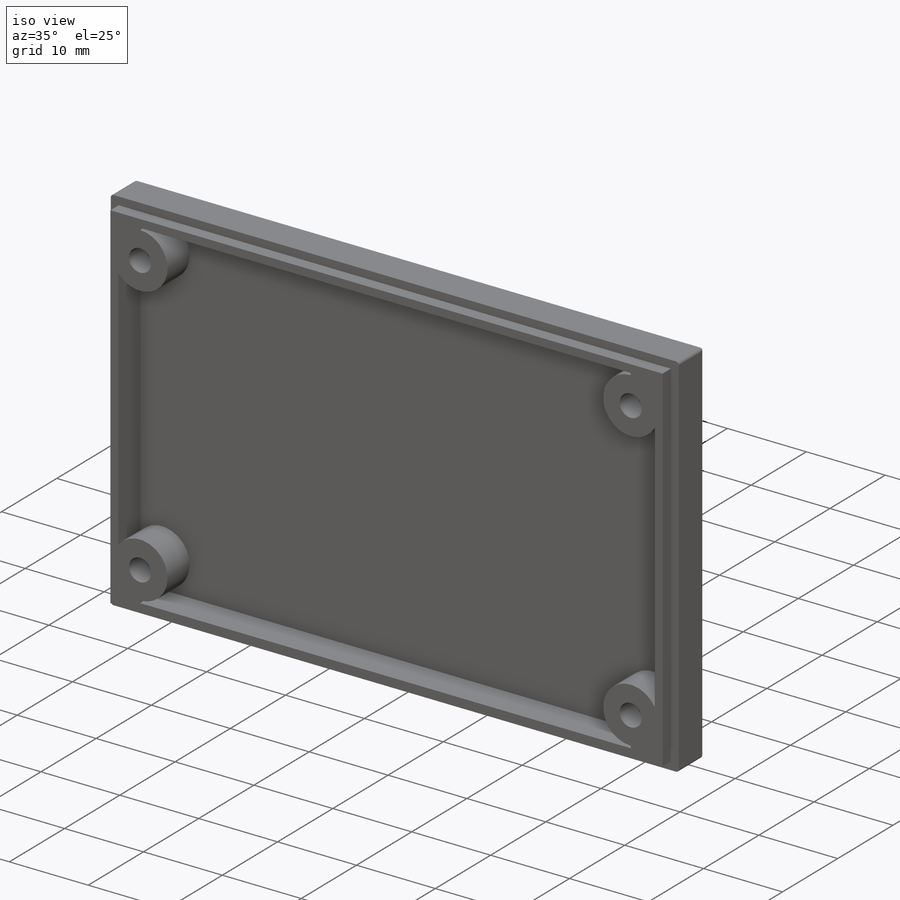
[diagram: iso view]
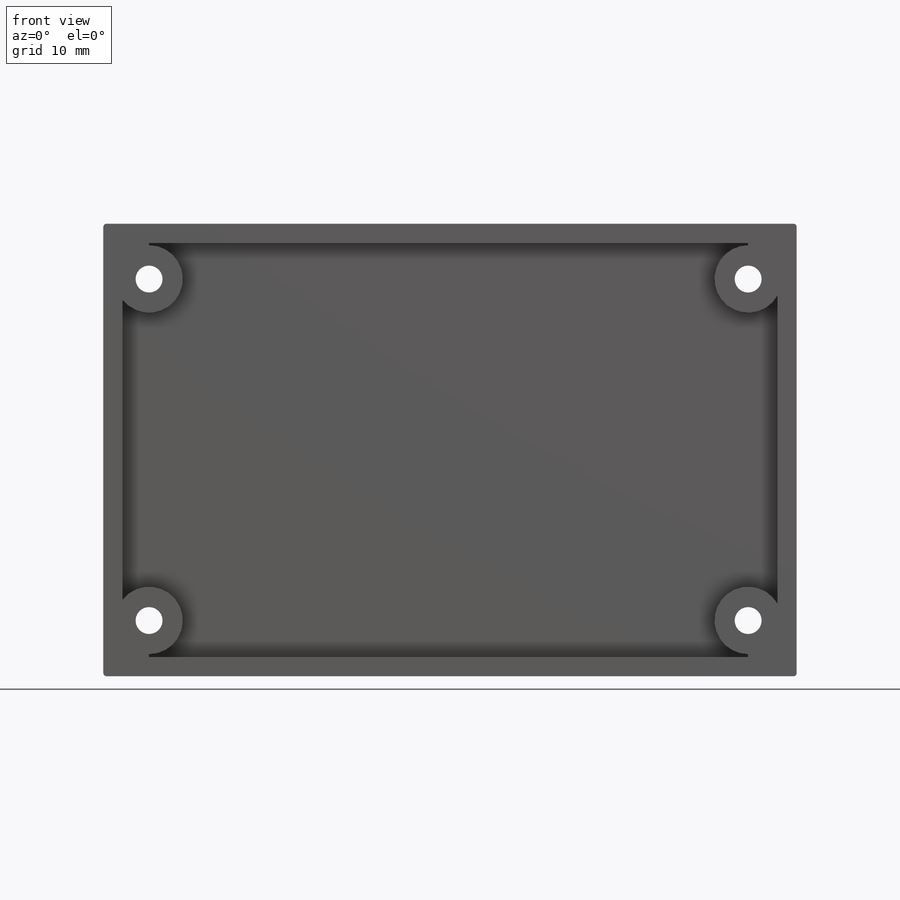
[diagram: front view]
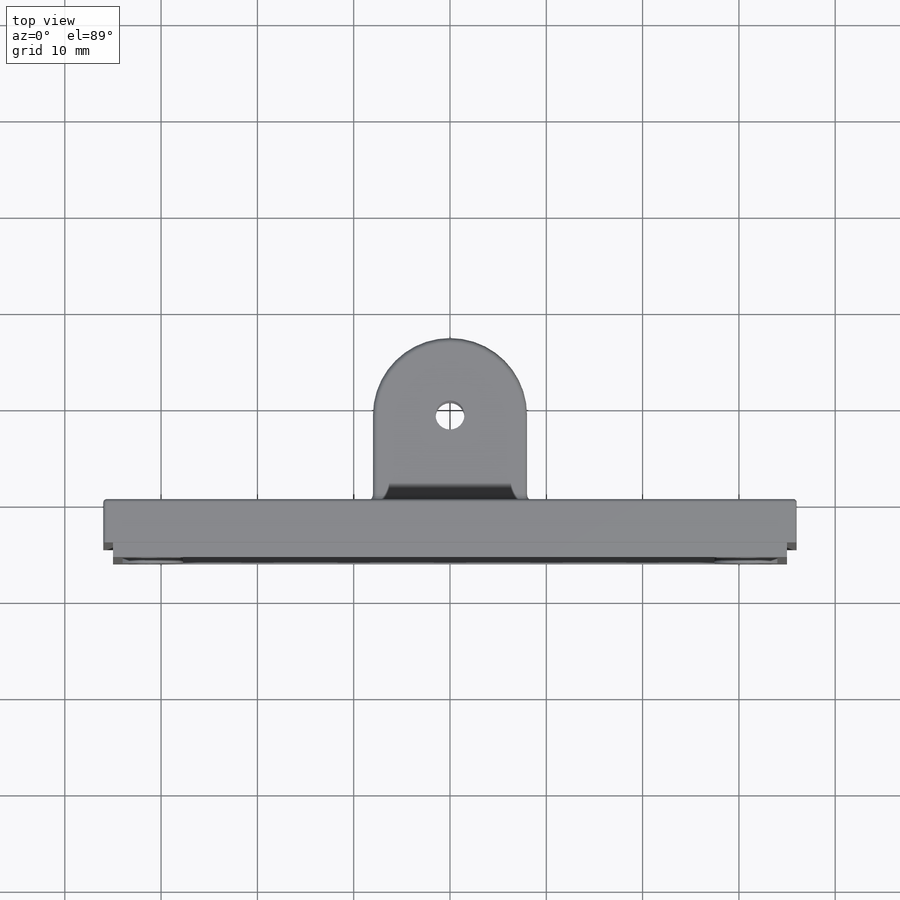
[diagram: top view]
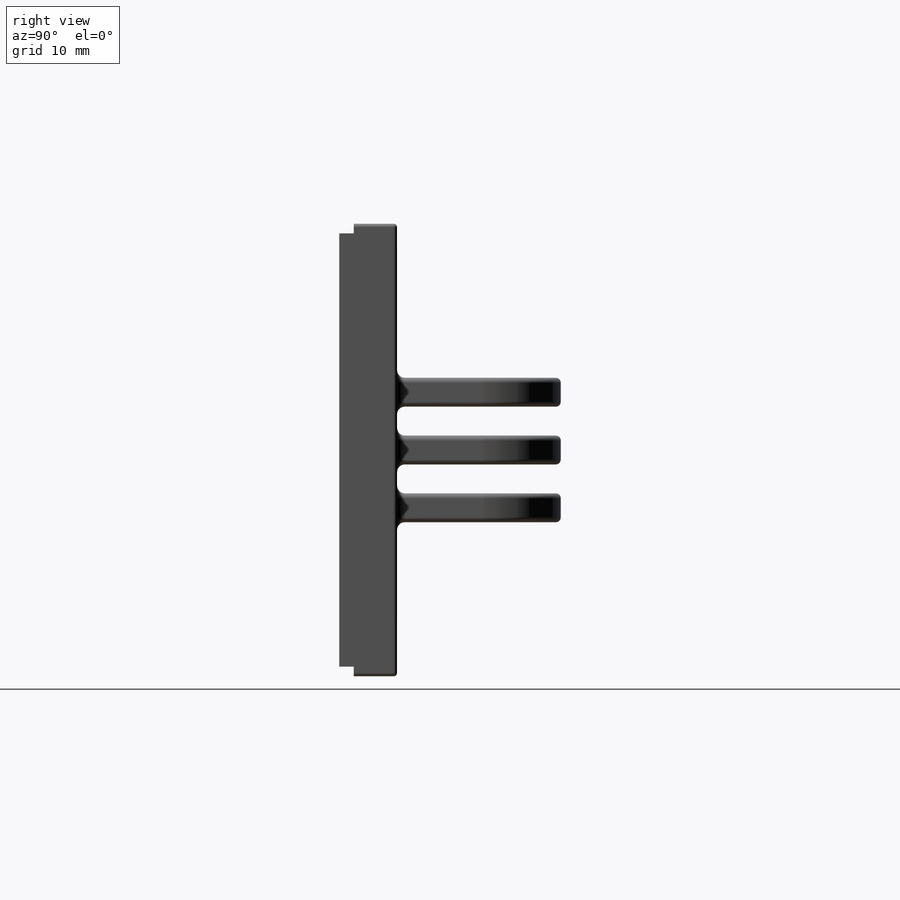
[diagram: right view]
SOLIDWORKS PART (.sldprt)
format: sldprt  version: not decoded by parser v0  size: 509,440 bytes
history: native  units: mm
features: sketch x8, fillet x5, extrude x4, cut_extrude x4, material x1, shell x1 (+12 scaffold rows collapsed)
feature tree (35):
  scaffold x12  (default folders/planes/origin — collapsed)
  material  "Material <not specified>"
  sketch  "Sketch1"  dims[D1=47.0mm D2=72.0mm]
  extrude  "Boss-Extrude1"  Depth=6mm
  shell  "Shell1"  Thickness=2mm
  sketch  "Sketch3"  dims[D1=1.0mm D2=1.0mm]
  cut_extrude  "Cut-Extrude1"  Depth=1.5mm
  sketch  "Sketch2"  dims[D1=7.0mm D2=2.75mm D3=3.75mm D4=2.0 D5=2.0]
  extrude  "Boss-Extrude2"  Depth=4mm
  sketch  "Sketch4"  dims[D1=0.0mm D2=0.0mm D3=0.0mm]
  extrude  "Boss-Extrude3"  Depth=4mm
  sketch  "Sketch5"  dims[D1=2.8mm D2=2.8mm D4=2.8mm D5=2.8mm D3=0.0mm]
  cut_extrude  "Cut-Extrude2"  [1 undecoded]
  sketch  "Sketch6"  dims[D1=5.5mm D2=2.0 D3=2.0]
  cut_extrude  "Cut-Extrude3"  Depth=3mm
  sketch  "Sketch7"  dims[c1.D1=3.0mm c1.D2=16.0mm c1.D3=3.0mm c1.D4=3.0mm c1.D5=3.0mm c1.D6=3.0mm c2.D3=3.0mm c2.D4=3.0mm c2.D5=3.0mm c2.D6=3.0mm]
  extrude  "Boss-Extrude5"  Depth=17mm
  fillet  "Fillet2"  Radius=8mm
  sketch  "Sketch9"  dims[D2=3.0mm D1=8.0mm]
  cut_extrude  "Cut-Extrude5"  [1 undecoded]
  fillet  "Fillet3"  Radius=0.35mm
  fillet  "Fillet4"  Radius=0.5mm
  fillet  "Fillet5"  Radius=0.8mm
  fillet  "Fillet6"  Radius=0.35mm
decode coverage: 20 of 22 modeling features carry decoded parameters
note: 2 parameter values undecoded
note: suppression state not decoded; provenance and decode notes live in map.json
